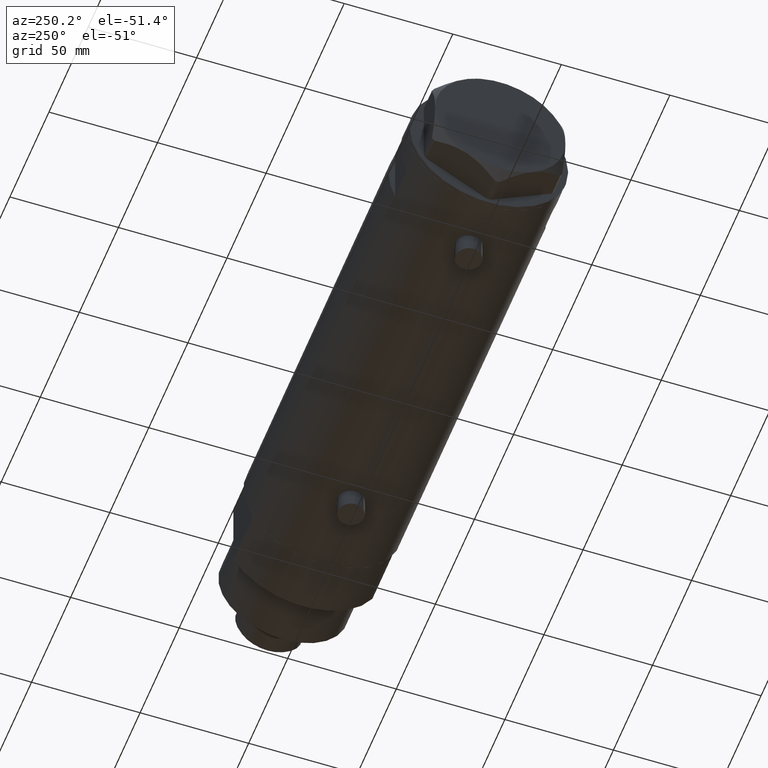
[diagram: clean part render]
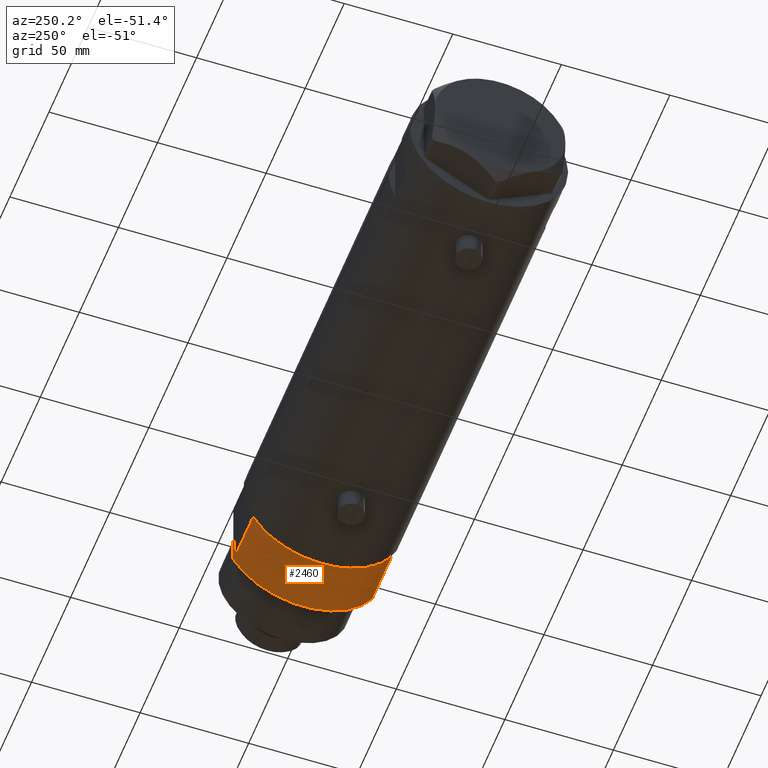
[diagram: same view with one face highlighted and labeled with its STEP entity id]
A machine part, auxiliary view. The second image highlights one B-rep face of the part: STEP entity #2460.
In plain terms, the highlighted cylindrical surface (partial cylindrical patch) has radius 36.5 mm, axis along (-1, -0, 0).
Its self-contained STEP definition (entity closure, byte-faithful):
#52 = LINE ( 'NONE', #1082, #285 ) ;
#285 = VECTOR ( 'NONE', #1857, 1000.000000000000000 ) ;
#299 = CARTESIAN_POINT ( 'NONE',  ( 17.55704986607943141, -32.00000000000000000, 0.000000000000000000 ) ) ;
#346 = EDGE_CURVE ( 'NONE', #2430, #4252, #52, .T. ) ;
#406 = ORIENTED_EDGE ( 'NONE', *, *, #346, .T. ) ;
#536 = ORIENTED_EDGE ( 'NONE', *, *, #1127, .F. ) ;
#605 = EDGE_CURVE ( 'NONE', #1794, #2430, #4127, .T. ) ;
#1063 = DIRECTION ( 'NONE',  ( 0.000000000000000000, 0.000000000000000000, 1.000000000000000000 ) ) ;
#1082 = CARTESIAN_POINT ( 'NONE',  ( 17.55704986607943141, 32.00000000000000000, 0.000000000000000000 ) ) ;
#1123 = ORIENTED_EDGE ( 'NONE', *, *, #605, .T. ) ;
#1127 = EDGE_CURVE ( 'NONE', #2964, #4252, #2442, .T. ) ;
#1187 = CARTESIAN_POINT ( 'NONE',  ( 0.000000000000000000, 0.000000000000000000, 25.19999999999999929 ) ) ;
#1503 = CARTESIAN_POINT ( 'NONE',  ( 17.55704986607943496, 32.00000000000000000, 25.19999999999999929 ) ) ;
#1528 = DIRECTION ( 'NONE',  ( -0.000000000000000000, -0.000000000000000000, -1.000000000000000000 ) ) ;
#1630 = ORIENTED_EDGE ( 'NONE', *, *, #4377, .F. ) ;
#1735 = AXIS2_PLACEMENT_3D ( 'NONE', #2789, #1063, #2111 ) ;
#1794 = VERTEX_POINT ( 'NONE', #4067 ) ;
#1857 = DIRECTION ( 'NONE',  ( -0.000000000000000000, -0.000000000000000000, 1.000000000000000000 ) ) ;
#2111 = DIRECTION ( 'NONE',  ( 1.000000000000000000, 0.000000000000000000, 0.000000000000000000 ) ) ;
#2154 = AXIS2_PLACEMENT_3D ( 'NONE', #2772, #4171, #3760 ) ;
#2430 = VERTEX_POINT ( 'NONE', #4010 ) ;
#2442 = CIRCLE ( 'NONE', #1735, 36.50000000000000000 ) ;
#2460 = ADVANCED_FACE ( 'NONE', ( #4302 ), #2514, .T. ) ;
#2514 = CYLINDRICAL_SURFACE ( 'NONE', #3550, 36.50000000000000000 ) ;
#2772 = CARTESIAN_POINT ( 'NONE',  ( 0.000000000000000000, 0.000000000000000000, 0.000000000000000000 ) ) ;
#2789 = CARTESIAN_POINT ( 'NONE',  ( 0.000000000000000000, 0.000000000000000000, 25.19999999999999929 ) ) ;
#2964 = VERTEX_POINT ( 'NONE', #3725 ) ;
#3006 = EDGE_LOOP ( 'NONE', ( #536, #1630, #1123, #406 ) ) ;
#3030 = DIRECTION ( 'NONE',  ( -0.000000000000000000, -0.000000000000000000, 1.000000000000000000 ) ) ;
#3550 = AXIS2_PLACEMENT_3D ( 'NONE', #1187, #1528, #3917 ) ;
#3725 = CARTESIAN_POINT ( 'NONE',  ( 17.55704986607943496, -32.00000000000000000, 25.19999999999999929 ) ) ;
#3760 = DIRECTION ( 'NONE',  ( 1.000000000000000000, 0.000000000000000000, 0.000000000000000000 ) ) ;
#3917 = DIRECTION ( 'NONE',  ( -1.000000000000000000, 0.000000000000000000, 0.000000000000000000 ) ) ;
#4010 = CARTESIAN_POINT ( 'NONE',  ( 17.55704986607943496, 32.00000000000000000, 0.000000000000000000 ) ) ;
#4067 = CARTESIAN_POINT ( 'NONE',  ( 17.55704986607943141, -32.00000000000000000, 0.000000000000000000 ) ) ;
#4127 = CIRCLE ( 'NONE', #2154, 36.50000000000000000 ) ;
#4171 = DIRECTION ( 'NONE',  ( 0.000000000000000000, 0.000000000000000000, 1.000000000000000000 ) ) ;
#4252 = VERTEX_POINT ( 'NONE', #1503 ) ;
#4302 = FACE_OUTER_BOUND ( 'NONE', #3006, .T. ) ;
#4377 = EDGE_CURVE ( 'NONE', #1794, #2964, #4450, .T. ) ;
#4436 = VECTOR ( 'NONE', #3030, 1000.000000000000000 ) ;
#4450 = LINE ( 'NONE', #299, #4436 ) ;